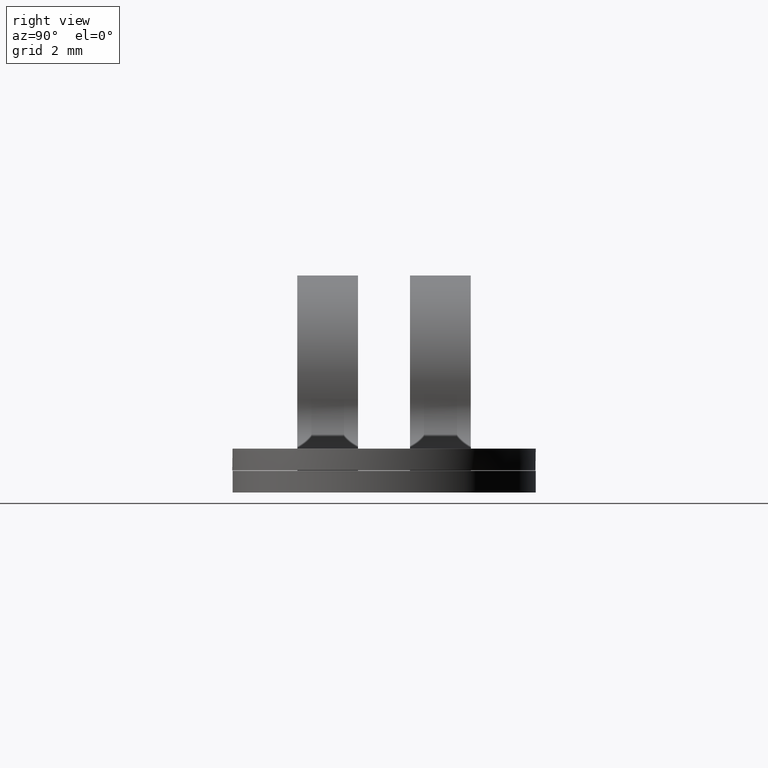
[diagram: clean part render]
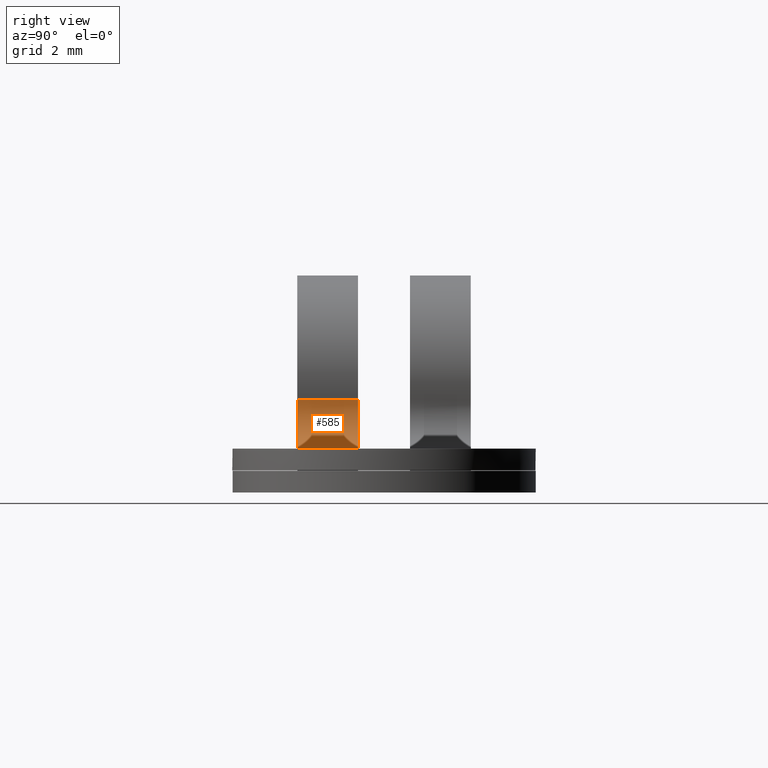
[diagram: same view with one face highlighted and labeled with its STEP entity id]
A machine part, right view. The second image highlights one B-rep face of the part: STEP entity #585.
In plain terms, the highlighted face is a freeform B-spline surface patch.
Its self-contained STEP definition (entity closure, byte-faithful):
#372=CARTESIAN_POINT('',(2.875378758897320,-0.600000000000045,-0.350000000000000));
#373=VERTEX_POINT('',#372);
#393=CARTESIAN_POINT('',(3.865530262456245,-0.600000000000045,-1.490000000000000));
#394=VERTEX_POINT('',#393);
#395=CARTESIAN_POINT('',(3.865530262456245,-0.600000000000045,-1.490000000000000));
#396=CARTESIAN_POINT('',(3.409551855881486,-0.600000000000045,-1.490000000000000));
#397=CARTESIAN_POINT('',(3.110546818929170,-0.600000000000045,-1.145743852430200));
#398=CARTESIAN_POINT('',(2.811541781976854,-0.600000000000045,-0.801487704860400));
#399=CARTESIAN_POINT('',(2.875378758897320,-0.600000000000045,-0.350000000000000));
#407=(BOUNDED_CURVE()B_SPLINE_CURVE(2,(#395,#396,#397,#398,#399),.UNSPECIFIED.,.F.,.U.)B_SPLINE_CURVE_WITH_KNOTS((3,2,3),(0.0,0.500000000000000,1.0),.UNSPECIFIED.)CURVE()GEOMETRIC_REPRESENTATION_ITEM()RATIONAL_B_SPLINE_CURVE((1.0,0.909874676103858,1.0,0.909874676103858,1.0))REPRESENTATION_ITEM(''));
#408=EDGE_CURVE('',#394,#373,#407,.T.);
#539=CARTESIAN_POINT('',(3.908315354965192,-0.565000000000046,-1.489084298675042));
#540=CARTESIAN_POINT('',(3.908315354965192,-2.035874999999999,-1.489084298675042));
#541=CARTESIAN_POINT('',(2.611393413171776,-0.565000000000046,-1.544624081784539));
#542=CARTESIAN_POINT('',(2.611393413171776,-2.035875000000000,-1.544624081784539));
#543=CARTESIAN_POINT('',(2.888596747972752,-0.565000000000046,-0.276456308267063));
#544=CARTESIAN_POINT('',(2.888596747972752,-2.035874999999999,-0.276456308267063));
#552=(BOUNDED_SURFACE()B_SPLINE_SURFACE(1,2,((#539,#541,#543),(#540,#542,#544)),.UNSPECIFIED.,.F.,.F.,.U.)B_SPLINE_SURFACE_WITH_KNOTS((2,2),(3,3),(0.0,1.0),(0.0,0.997607128758263),.UNSPECIFIED.)GEOMETRIC_REPRESENTATION_ITEM()RATIONAL_B_SPLINE_SURFACE(((1.0,0.609697612533904,0.998132113282902),(1.0,0.609697612533904,0.998132113282902)))REPRESENTATION_ITEM('')SURFACE());
#553=CARTESIAN_POINT('',(3.865530262456245,-2.0,-1.490000000000000));
#554=VERTEX_POINT('',#553);
#555=CARTESIAN_POINT('',(3.865530262456245,-0.600000000000045,-1.490000000000000));
#556=CARTESIAN_POINT('',(3.865530262456245,-2.0,-1.490000000000000));
#557=QUASI_UNIFORM_CURVE('',1,(#555,#556),.UNSPECIFIED.,.F.,.U.);
#558=EDGE_CURVE('',#394,#554,#557,.T.);
#559=ORIENTED_EDGE('',*,*,#558,.F.);
#560=ORIENTED_EDGE('',*,*,#408,.T.);
#561=CARTESIAN_POINT('',(2.875378758897320,-2.0,-0.350000000000000));
#562=VERTEX_POINT('',#561);
#563=CARTESIAN_POINT('',(2.875378758897320,-0.600000000000045,-0.350000000000000));
#564=CARTESIAN_POINT('',(2.875378758897320,-2.0,-0.350000000000000));
#565=QUASI_UNIFORM_CURVE('',1,(#563,#564),.UNSPECIFIED.,.F.,.U.);
#566=EDGE_CURVE('',#373,#562,#565,.T.);
#567=ORIENTED_EDGE('',*,*,#566,.T.);
#568=CARTESIAN_POINT('',(2.875378758897320,-2.0,-0.350000000000000));
#569=CARTESIAN_POINT('',(2.811541781976854,-2.000000000000000,-0.801487704860400));
#570=CARTESIAN_POINT('',(3.110546818929170,-2.0,-1.145743852430200));
#571=CARTESIAN_POINT('',(3.409551855881486,-2.000000000000000,-1.490000000000001));
#572=CARTESIAN_POINT('',(3.865530262456245,-2.0,-1.490000000000000));
#580=(BOUNDED_CURVE()B_SPLINE_CURVE(2,(#568,#569,#570,#571,#572),.UNSPECIFIED.,.F.,.U.)B_SPLINE_CURVE_WITH_KNOTS((3,2,3),(0.0,0.500000000000000,1.0),.UNSPECIFIED.)CURVE()GEOMETRIC_REPRESENTATION_ITEM()RATIONAL_B_SPLINE_CURVE((1.0,0.909874676103857,1.0,0.909874676103857,1.0))REPRESENTATION_ITEM(''));
#581=EDGE_CURVE('',#562,#554,#580,.T.);
#582=ORIENTED_EDGE('',*,*,#581,.T.);
#583=EDGE_LOOP('',(#559,#560,#567,#582));
#584=FACE_OUTER_BOUND('',#583,.T.);
#585=ADVANCED_FACE('',(#584),#552,.F.);